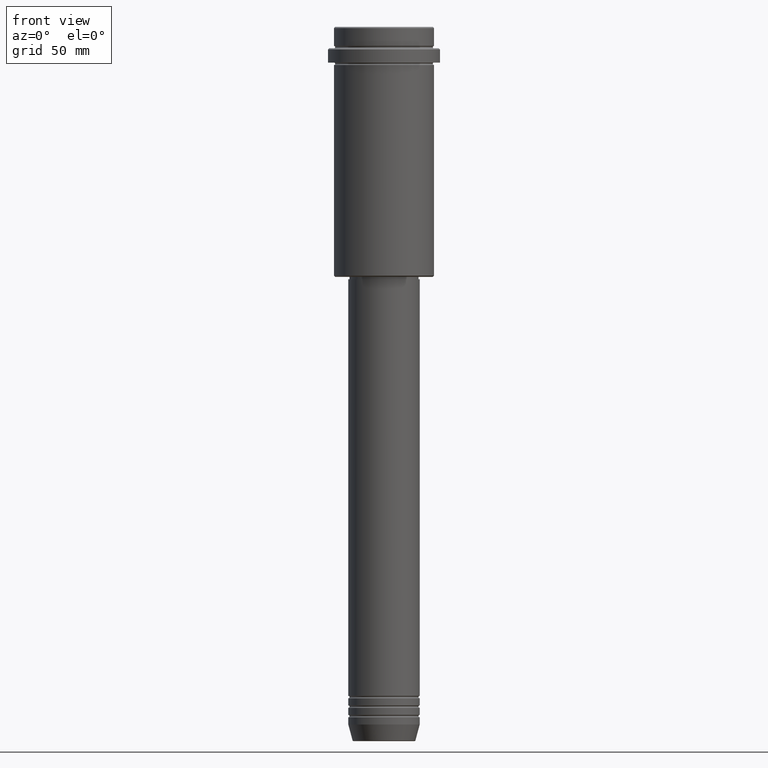
[diagram: clean part render]
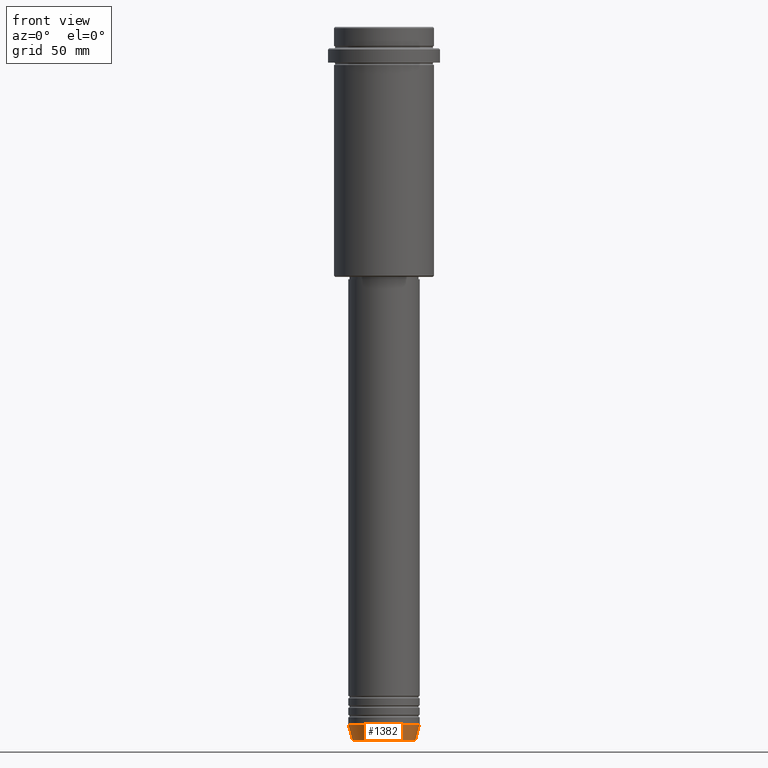
[diagram: same view with one face highlighted and labeled with its STEP entity id]
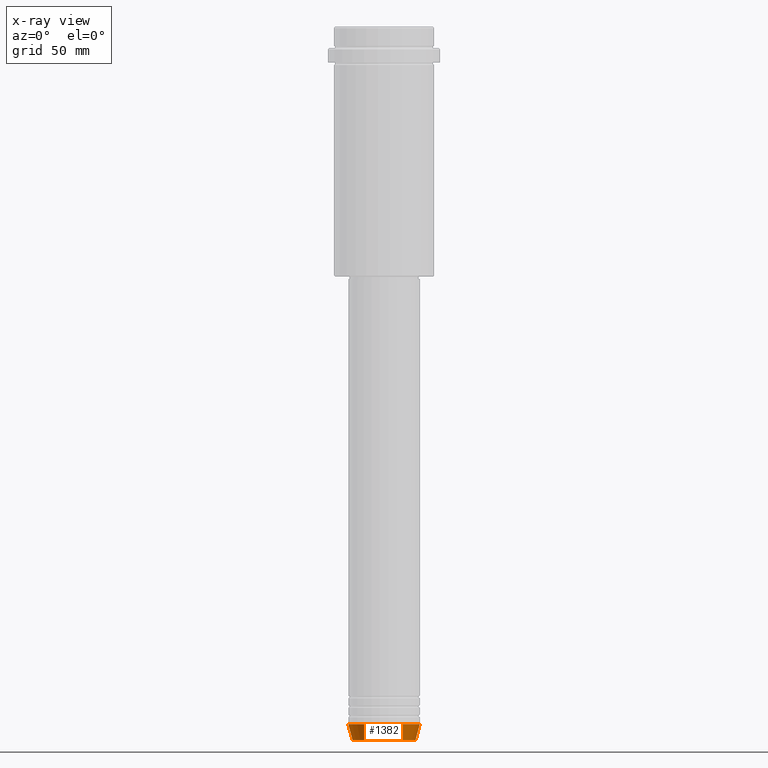
[diagram: x-ray of the same camera — body ghosted, the highlighted face saturated]
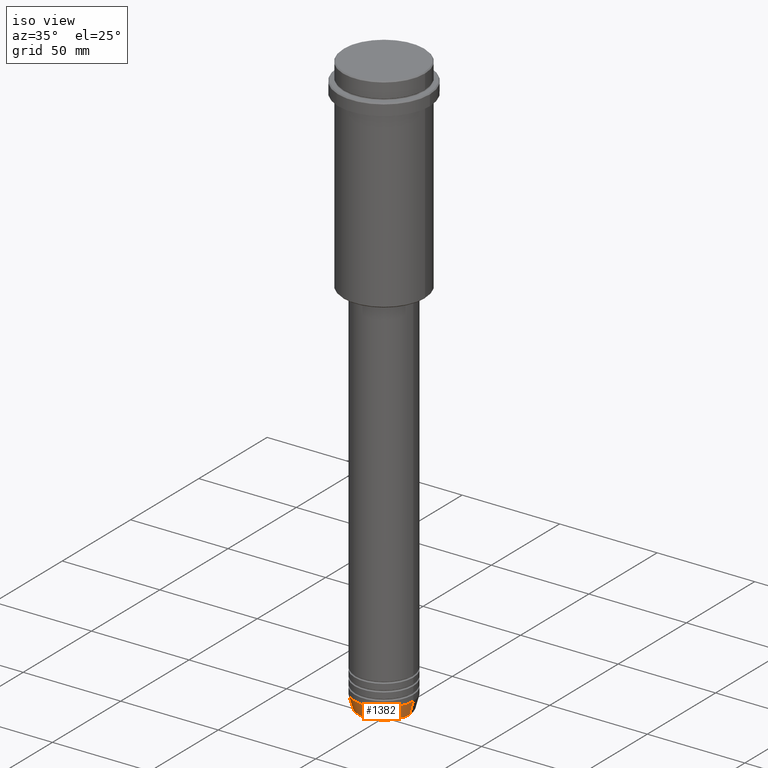
[diagram: same view with one face highlighted and labeled with its STEP entity id]
A machine part, front view. The second image highlights one B-rep face of the part: STEP entity #1382.
The next image is the same camera in x-ray: the body ghosted, the highlighted face saturated — about 0% of this face is hidden behind the body in this view.
A second angle (iso view) of the same face is appended — the face is thin or edge-on in the first view.
In plain terms, the highlighted conical surface has half-angle 15 deg.
Its self-contained STEP definition (entity closure, byte-faithful):
#15 = DIRECTION ( 'NONE',  ( -0.2588190451025213501, 3.169619151431772337E-17, 0.9659258262890680902 ) ) ;
#131 = DIRECTION ( 'NONE',  ( -0.000000000000000000, -0.000000000000000000, 1.000000000000000000 ) ) ;
#139 = AXIS2_PLACEMENT_3D ( 'NONE', #637, #1182, #1075 ) ;
#240 = DIRECTION ( 'NONE',  ( 1.000000000000000000, 0.000000000000000000, 0.000000000000000000 ) ) ;
#290 = EDGE_CURVE ( 'NONE', #1106, #911, #1117, .T. ) ;
#306 = FACE_OUTER_BOUND ( 'NONE', #396, .T. ) ;
#333 = CARTESIAN_POINT ( 'NONE',  ( 0.000000000000000000, 0.000000000000000000, -299.6294095225513274 ) ) ;
#388 = AXIS2_PLACEMENT_3D ( 'NONE', #333, #876, #426 ) ;
#396 = EDGE_LOOP ( 'NONE', ( #1244, #776, #532, #424 ) ) ;
#424 = ORIENTED_EDGE ( 'NONE', *, *, #290, .F. ) ;
#426 = DIRECTION ( 'NONE',  ( 1.000000000000000000, 0.000000000000000000, 0.000000000000000000 ) ) ;
#448 = CARTESIAN_POINT ( 'NONE',  ( -15.00000000000000000, 1.836970198721029589E-15, -293.0000000000000568 ) ) ;
#463 = EDGE_CURVE ( 'NONE', #552, #911, #467, .T. ) ;
#467 = LINE ( 'NONE', #680, #643 ) ;
#510 = CONICAL_SURFACE ( 'NONE', #139, 15.00000000000000000, 0.2617993877991500740 ) ;
#518 = EDGE_CURVE ( 'NONE', #1105, #552, #944, .T. ) ;
#532 = ORIENTED_EDGE ( 'NONE', *, *, #463, .T. ) ;
#552 = VERTEX_POINT ( 'NONE', #983 ) ;
#586 = EDGE_CURVE ( 'NONE', #1105, #1106, #1001, .T. ) ;
#637 = CARTESIAN_POINT ( 'NONE',  ( 0.000000000000000000, 0.000000000000000000, -293.0000000000000568 ) ) ;
#643 = VECTOR ( 'NONE', #905, 1000.000000000000000 ) ;
#680 = CARTESIAN_POINT ( 'NONE',  ( 15.00000000000000000, 0.000000000000000000, -293.0000000000000568 ) ) ;
#722 = CARTESIAN_POINT ( 'NONE',  ( 15.00000000000000000, 0.000000000000000000, -293.0000000000000568 ) ) ;
#770 = CARTESIAN_POINT ( 'NONE',  ( 0.000000000000000000, 0.000000000000000000, -293.0000000000000568 ) ) ;
#776 = ORIENTED_EDGE ( 'NONE', *, *, #518, .T. ) ;
#816 = CARTESIAN_POINT ( 'NONE',  ( -13.22365507213718772, 1.728200442216588386E-15, -299.6294095225513274 ) ) ;
#876 = DIRECTION ( 'NONE',  ( -0.000000000000000000, -0.000000000000000000, 1.000000000000000000 ) ) ;
#905 = DIRECTION ( 'NONE',  ( 0.2588190451025213501, 0.000000000000000000, 0.9659258262890680902 ) ) ;
#911 = VERTEX_POINT ( 'NONE', #722 ) ;
#924 = CARTESIAN_POINT ( 'NONE',  ( -15.00000000000000000, 1.836970198721029589E-15, -293.0000000000000568 ) ) ;
#944 = CIRCLE ( 'NONE', #388, 13.22365507213718772 ) ;
#983 = CARTESIAN_POINT ( 'NONE',  ( 13.22365507213718772, 0.000000000000000000, -299.6294095225513274 ) ) ;
#1001 = LINE ( 'NONE', #448, #1279 ) ;
#1075 = DIRECTION ( 'NONE',  ( 1.000000000000000000, 0.000000000000000000, 0.000000000000000000 ) ) ;
#1077 = AXIS2_PLACEMENT_3D ( 'NONE', #770, #131, #240 ) ;
#1105 = VERTEX_POINT ( 'NONE', #816 ) ;
#1106 = VERTEX_POINT ( 'NONE', #924 ) ;
#1117 = CIRCLE ( 'NONE', #1077, 15.00000000000000000 ) ;
#1182 = DIRECTION ( 'NONE',  ( -0.000000000000000000, -0.000000000000000000, 1.000000000000000000 ) ) ;
#1244 = ORIENTED_EDGE ( 'NONE', *, *, #586, .F. ) ;
#1279 = VECTOR ( 'NONE', #15, 1000.000000000000000 ) ;
#1382 = ADVANCED_FACE ( 'NONE', ( #306 ), #510, .T. ) ;